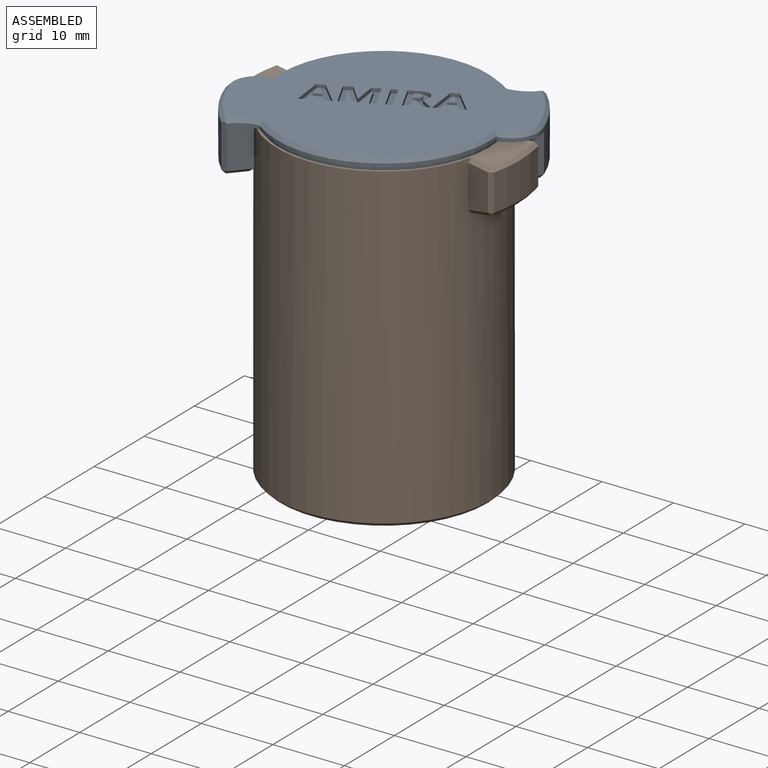
[diagram: assembled view]
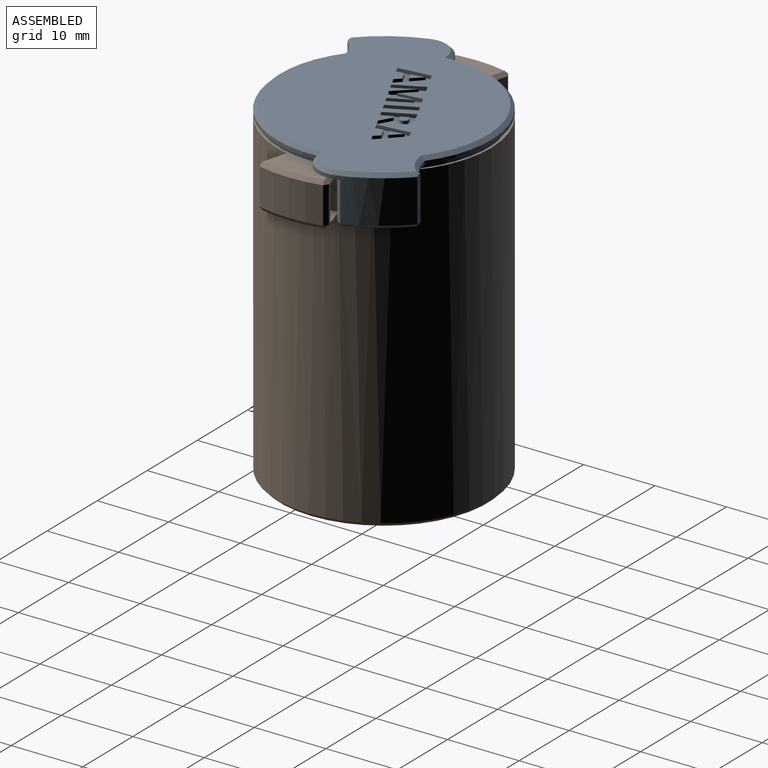
[diagram: assembled view, second angle]
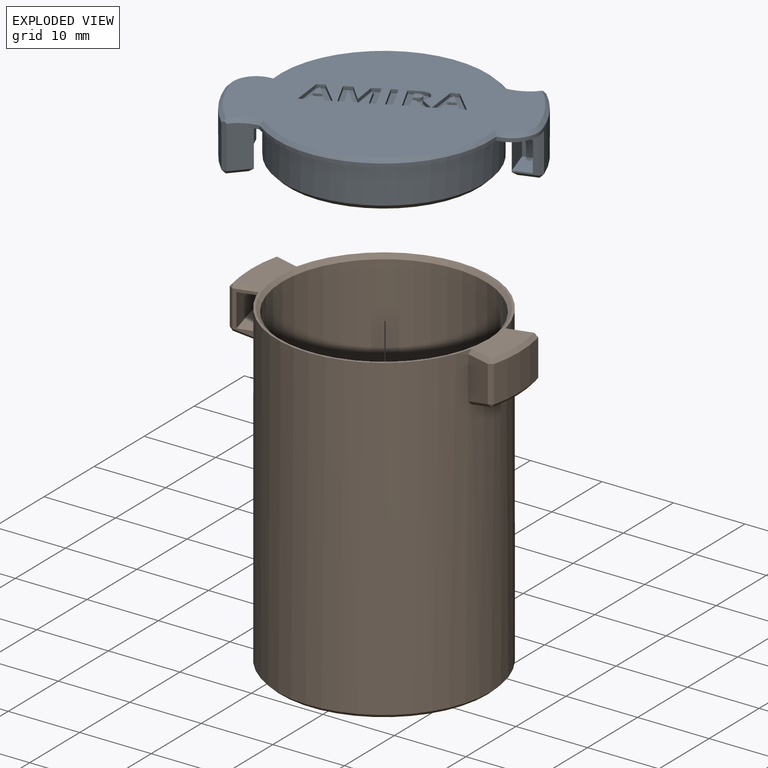
[diagram: exploded view]
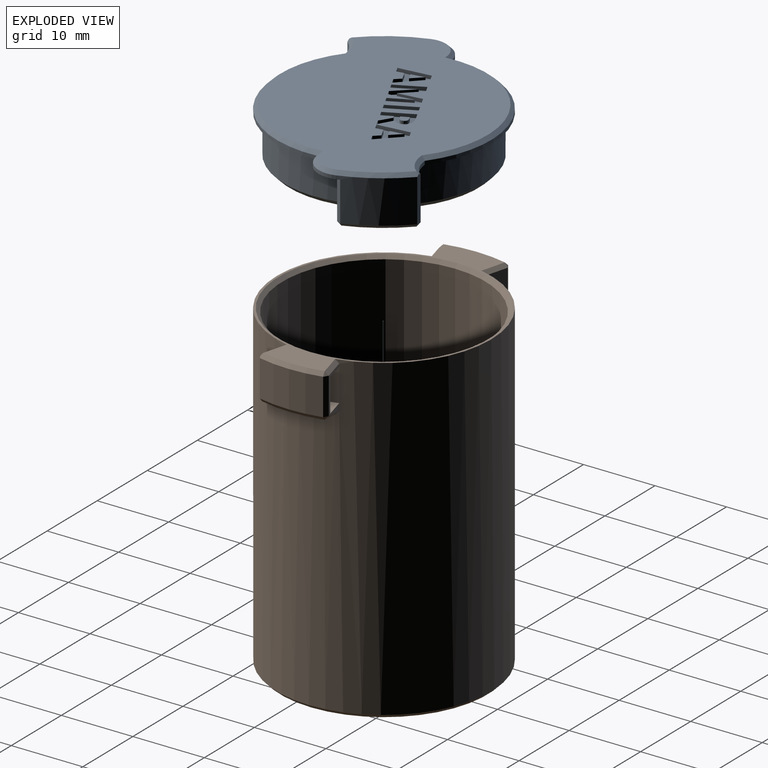
[diagram: exploded view, second angle]
ASSEMBLY  parts=2 mates=2
PART A: 134 faces, bbox 36.6x30x7 mm
  f0: plane 35.47x29mm, normal (0,0,1), area 707.3mm2, adj f34,f35,f36,f37,f38,f39,f40,f41
  f1: cylinder r=19mm len=8.02mm, axis (0,0,1), area 53.8mm2, adj f2,f28,f43,f44,f45,f46
  f2: plane 34.2x30mm, normal (0,0,-1), area 127.9mm2, adj f1,f3,f4,f5,f9,f11,f17,f18
  f3: plane 5.5x2.26mm, normal (-0.71,-0.71,0), area 7.1mm2, adj f2,f9,f12,f14,f15,f44,f49
  f4: cylinder r=19mm len=8.02mm, axis (0,0,1), area 53.8mm2, adj f2,f33,f34,f52,f53,f54
  f5: cylinder r=13.95mm len=27.9mm, axis (0,0,-1), area 464.5mm2, adj f2,f26
  f6: plane 26.5x26.5mm, normal (0,0,-1), area 40.8mm2, adj f7,f26
  f7: cylinder r=12.75mm len=25.5mm, axis (0,0,-1), area 400.6mm2, adj f6,f27
  f8: plane 23.5x23.5mm, normal (0,0,-1), area 433.7mm2, adj f27
  f9: cylinder r=15.3mm len=6.86mm, axis (0,0,1), area 44.1mm2, adj f2,f3,f11,f13,f51
  f10: plane 8.15x6.21mm, normal (0,0,-1), area 21.5mm2, adj f45,f49,f50,f51
  f11: plane 6x3.08mm, normal (0.26,0.97,0), area 18mm2, adj f2,f9,f31,f41,f46,f50
  f12: plane 4.6x4.6mm, normal (0,0,-1), area 10mm2, adj f3,f13,f15,f16
  f13: plane 4.2x2.83mm, normal (0.71,-0.71,0), area 16.8mm2, adj f9,f12,f14,f16
  f14: plane 4.6x4.6mm, normal (0,0,1), area 10mm2, adj f3,f13,f15,f16
  f15: plane 4.2x2.83mm, normal (-0.71,0.71,0), area 16.8mm2, adj f3,f12,f14,f16
  f16: plane 4.2x1.77mm, normal (-0.71,-0.71,0), area 10.5mm2, adj f12,f13,f14,f15
  f17: plane 5.5x2.26mm, normal (0.71,0.71,0), area 7.1mm2, adj f2,f18,f21,f23,f24,f52,f57
  f18: cylinder r=15.3mm len=6.86mm, axis (0,0,1), area 44.1mm2, adj f2,f17,f20,f22,f59
  f19: plane 8.15x6.21mm, normal (0,0,-1), area 21.5mm2, adj f53,f57,f58,f59
  f20: plane 6x3.08mm, normal (-0.26,-0.97,0), area 18mm2, adj f2,f18,f29,f36,f54,f58
  f21: plane 4.6x4.6mm, normal (0,0,-1), area 10mm2, adj f17,f22,f24,f25
  f22: plane 4.2x2.83mm, normal (-0.71,0.71,0), area 16.8mm2, adj f18,f21,f23,f25
  f23: plane 4.6x4.6mm, normal (0,0,1), area 10mm2, adj f17,f22,f24,f25
  f24: plane 4.2x2.83mm, normal (0.71,-0.71,0), area 16.8mm2, adj f17,f21,f23,f25
  f25: plane 4.2x1.77mm, normal (0.71,0.71,0), area 10.5mm2, adj f21,f22,f23,f24
  f26: cone r=13.25mm half-angle=45deg, axis (0,0,1), area 84.6mm2, adj f5,f6
  f27: torus R=11.75mm, axis (0,0,-1), area 122.3mm2, adj f7,f8
  f28: cylinder r=3.7mm len=5.71mm, axis (0,0,-1), area 3.3mm2, adj f1,f2,f30,f42
  f29: cylinder r=4.96mm len=2.33mm, axis (0,0,-1), area 1.6mm2, adj f2,f20,f30,f38
  f30: cylinder r=15mm len=22.73mm, axis (0,0,-1), area 17.1mm2, adj f2,f28,f29,f40
  f31: cylinder r=4.96mm len=2.33mm, axis (0,0,-1), area 1.6mm2, adj f2,f11,f32,f39
  f32: cylinder r=15mm len=22.73mm, axis (0,0,-1), area 17.1mm2, adj f2,f31,f33,f37
  f33: cylinder r=3.7mm len=5.71mm, axis (0,0,-1), area 3.3mm2, adj f2,f4,f32,f35
  f34: cone r=19mm half-angle=45deg, axis (0,0,-1), area 6.7mm2, adj f0,f4,f35,f36,f54
  f35: cone r=3.7mm half-angle=45deg, axis (0,0,-1), area 4.5mm2, adj f0,f33,f34,f37
  f36: plane 1.1x0.69mm, normal (-0.18,-0.68,0.71), area 0.7mm2, adj f0,f20,f34,f38,f54
  f37: cone r=15mm half-angle=45deg, axis (0,0,-1), area 24.1mm2, adj f0,f32,f35,f39
  f38: cone r=5.46mm half-angle=45deg, axis (0,0,1), area 2.4mm2, adj f0,f29,f36,f40
  f39: cone r=5.46mm half-angle=45deg, axis (0,0,1), area 2.4mm2, adj f0,f31,f37,f41
  f40: cone r=15mm half-angle=45deg, axis (0,0,-1), area 24.1mm2, adj f0,f30,f38,f42
  f41: plane 1.1x0.69mm, normal (0.18,0.68,0.71), area 0.7mm2, adj f0,f11,f39,f43,f46
  f42: cone r=3.7mm half-angle=45deg, axis (0,0,-1), area 4.5mm2, adj f0,f28,f40,f43
  f43: cone r=19mm half-angle=45deg, axis (0,0,-1), area 6.7mm2, adj f0,f1,f41,f42,f46
  f44: plane 5.5x0.72mm, normal (0.01,-1,0), area 3.9mm2, adj f1,f2,f3,f47
  f45: cone r=19mm half-angle=45deg, axis (0,0,1), area 6.2mm2, adj f1,f10,f47,f48
  f46: plane 6.26x0.63mm, normal (0.87,0.49,0), area 4.4mm2, adj f1,f11,f41,f43,f48
  f47: plane 0.72x0.5mm, normal (0.01,-0.82,-0.57), area 0.2mm2, adj f44,f45,f49
  f48: plane 0.63x0.5mm, normal (0.72,0.4,-0.57), area 0.2mm2, adj f45,f46,f50
  f49: plane 2.62x2.27mm, normal (-0.5,-0.5,-0.71), area 2.1mm2, adj f3,f10,f47,f51
  f50: plane 3.09x1.32mm, normal (0.18,0.68,-0.71), area 2.1mm2, adj f10,f11,f48,f51
  f51: cone r=15.8mm half-angle=45deg, axis (0,0,-1), area 5.4mm2, adj f9,f10,f49,f50
  f52: plane 5.5x0.72mm, normal (-0.01,1,0), area 3.9mm2, adj f2,f4,f17,f55
  f53: cone r=19mm half-angle=45deg, axis (0,0,1), area 6.2mm2, adj f4,f19,f55,f56
  f54: plane 6.26x0.63mm, normal (-0.87,-0.49,0), area 4.4mm2, adj f4,f20,f34,f36,f56
  f55: plane 0.72x0.5mm, normal (-0.01,0.82,-0.57), area 0.2mm2, adj f52,f53,f57
  f56: plane 0.63x0.5mm, normal (-0.72,-0.4,-0.57), area 0.2mm2, adj f53,f54,f58
  f57: plane 2.62x2.27mm, normal (0.5,0.5,-0.71), area 2.1mm2, adj f17,f19,f55,f59
  f58: plane 3.09x1.32mm, normal (-0.18,-0.68,-0.71), area 2.1mm2, adj f19,f20,f56,f59
  f59: cone r=15.8mm half-angle=45deg, axis (0,0,-1), area 5.4mm2, adj f18,f19,f57,f58
  f60: plane 3.24x1.18mm, normal (0.94,-0.34,0), area 1.7mm2, adj f0,f61,f78,f79
  f61: plane 0.65x0.5mm, normal (0.6,0.8,0), area 0.4mm2, adj f0,f60,f62,f79
  f62: plane 2.84x1.97mm, normal (-0.57,0.82,0), area 1.7mm2, adj f0,f61,f63,f79
  f63: plane 0.5x0.02mm, normal (0.6,0.8,0), area 0mm2, adj f0,f62,f64,f79
  f64: extruded ~0.76x0.62mm, area 0.5mm2, adj f0,f63,f65,f79
  f65: extruded ~0.5x0.26mm, area 0.2mm2, adj f0,f64,f66,f79
  f66: plane 1.59x1.2mm, normal (0.8,-0.6,0), area 1mm2, adj f0,f65,f67,f79
  f67: plane 0.66x0.5mm, normal (0.6,0.8,0), area 0.4mm2, adj f0,f66,f68,f79
  f68: plane 3.35x2.53mm, normal (-0.8,0.6,0), area 2.1mm2, adj f0,f67,f69,f79
  f69: plane 0.97x0.73mm, normal (-0.6,-0.8,0), area 0.6mm2, adj f0,f68,f70,f79
  f70: plane 2.77x1.93mm, normal (0.57,-0.82,0), area 1.7mm2, adj f0,f69,f71,f79
  f71: plane 0.5x0.01mm, normal (-0.6,-0.8,0), area 0mm2, adj f0,f70,f72,f79
  f72: plane 3.16x1.14mm, normal (-0.94,0.34,0), area 1.7mm2, adj f0,f71,f73,f79
  f73: plane 0.97x0.73mm, normal (-0.6,-0.8,0), area 0.6mm2, adj f0,f72,f74,f79
  f74: plane 3.35x2.53mm, normal (0.8,-0.6,0), area 2.1mm2, adj f0,f73,f75,f79
  f75: plane 0.64x0.5mm, normal (0.6,0.8,0), area 0.4mm2, adj f0,f74,f76,f79
  f76: plane 1.56x1.18mm, normal (-0.8,0.6,0), area 1mm2, adj f0,f75,f77,f79
  f77: extruded ~1.1x0.76mm, area 0.7mm2, adj f0,f76,f78,f79
  f78: plane 0.5x0.02mm, normal (0.6,0.8,0), area 0mm2, adj f0,f60,f77,f79
  f79: plane 6.11x6.06mm, normal (0,0,1), area 12.2mm2, adj f60,f61,f62,f63,f64,f65,f66,f67
  f80: plane 1.29x0.97mm, normal (-0.8,0.6,0), area 0.8mm2, adj f0,f81,f98,f99
  f81: plane 0.5x0.38mm, normal (0.6,0.8,0), area 0.2mm2, adj f0,f80,f82,f99
  f82: plane 1.89x0.5mm, normal (1,-0.09,0), area 0.9mm2, adj f0,f81,f83,f99
  f83: plane 0.79x0.59mm, normal (0.6,0.8,0), area 0.5mm2, adj f0,f82,f84,f99
  f84: extruded ~2.2x0.5mm, area 1.1mm2, adj f0,f83,f85,f99
  f85: extruded ~0.73x0.5mm, area 0.4mm2, adj f0,f84,f86,f99
  f86: extruded ~0.56x0.5mm, area 0.4mm2, adj f0,f85,f87,f99
  f87: extruded ~1x0.5mm, area 0.5mm2, adj f0,f86,f88,f99
  f88: extruded ~1.01x0.82mm, area 0.7mm2, adj f0,f87,f89,f99
  f89: plane 0.98x0.74mm, normal (-0.6,-0.8,0), area 0.6mm2, adj f0,f88,f90,f99
  f90: plane 3.35x2.53mm, normal (0.8,-0.6,0), area 2.1mm2, adj f0,f89,f98,f99
  f91: plane 0.5x0.23mm, normal (-0.6,-0.8,0), area 0.1mm2, adj f92,f97,f99,f100
  f92: plane 0.91x0.68mm, normal (-0.8,0.6,0), area 0.6mm2, adj f91,f93,f99,f100
  f93: plane 0.5x0.22mm, normal (0.6,0.8,0), area 0.1mm2, adj f92,f94,f99,f100
  f94: extruded ~0.5x0.48mm, area 0.3mm2, adj f93,f95,f99,f100
  f95: extruded ~0.5x0.46mm, area 0.2mm2, adj f94,f96,f99,f100
  f96: extruded ~0.5x0.43mm, area 0.3mm2, adj f95,f97,f99,f100
  f97: extruded ~0.58x0.5mm, area 0.3mm2, adj f91,f96,f99,f100
  f98: plane 0.71x0.54mm, normal (0.6,0.8,0), area 0.4mm2, adj f0,f80,f90,f99
  f99: plane 5.37x4.42mm, normal (0,0,1), area 8.6mm2, adj f80,f81,f82,f83,f84,f85,f86,f87
  f100: plane 1.38x1.35mm, normal (0,0,1), area 1.1mm2, adj f91,f92,f93,f94,f95,f96,f97
  f101: extruded ~1.51x0.55mm, area 0.8mm2, adj f102,f112,f113,f132
  f102: plane 0.87x0.66mm, normal (-0.6,-0.8,0), area 0.5mm2, adj f101,f103,f113,f132
  f103: extruded ~1.53x1.13mm, area 0.9mm2, adj f102,f112,f113,f132
  f104: plane 0.98x0.5mm, normal (0.94,-0.34,0), area 0.5mm2, adj f0,f105,f111,f113
  f105: plane 0.77x0.58mm, normal (0.6,0.8,0), area 0.5mm2, adj f0,f104,f106,f113
  f106: plane 4.26x1.35mm, normal (-0.95,0.3,0), area 2.2mm2, adj f0,f105,f107,f113
  f107: plane 0.87x0.66mm, normal (-0.6,-0.8,0), area 0.5mm2, adj f0,f106,f108,f113
  f108: plane 3.72x2.48mm, normal (0.55,-0.83,0), area 2.2mm2, adj f0,f107,f109,f113
  f109: plane 0.77x0.58mm, normal (0.6,0.8,0), area 0.5mm2, adj f0,f108,f110,f113
  f110: plane 0.84x0.62mm, normal (-0.59,0.81,0), area 0.5mm2, adj f0,f109,f111,f113
  f111: plane 1.22x0.92mm, normal (0.6,0.8,0), area 0.8mm2, adj f0,f104,f110,f113
  f112: extruded ~0.5x0.27mm, area 0.1mm2, adj f101,f103,f113,f132
  f113: plane 4.92x4.59mm, normal (0,0,1), area 8mm2, adj f101,f102,f103,f104,f105,f106,f107,f108
  f114: extruded ~1.51x0.55mm, area 0.8mm2, adj f115,f125,f126,f133
  f115: plane 0.87x0.66mm, normal (-0.6,-0.8,0), area 0.5mm2, adj f114,f116,f126,f133
  f116: extruded ~1.53x1.13mm, area 0.9mm2, adj f115,f125,f126,f133
  f117: plane 0.98x0.5mm, normal (0.94,-0.34,0), area 0.5mm2, adj f0,f118,f124,f126
  f118: plane 0.77x0.58mm, normal (0.6,0.8,0), area 0.5mm2, adj f0,f117,f119,f126
  f119: plane 4.26x1.35mm, normal (-0.95,0.3,0), area 2.2mm2, adj f0,f118,f120,f126
  f120: plane 0.87x0.66mm, normal (-0.6,-0.8,0), area 0.5mm2, adj f0,f119,f121,f126
  f121: plane 3.72x2.48mm, normal (0.55,-0.83,0), area 2.2mm2, adj f0,f120,f122,f126
  f122: plane 0.77x0.58mm, normal (0.6,0.8,0), area 0.5mm2, adj f0,f121,f123,f126
  f123: plane 0.84x0.62mm, normal (-0.59,0.81,0), area 0.5mm2, adj f0,f122,f124,f126
  f124: plane 1.22x0.92mm, normal (0.6,0.8,0), area 0.8mm2, adj f0,f117,f123,f126
  f125: extruded ~0.5x0.27mm, area 0.1mm2, adj f114,f116,f126,f133
  f126: plane 4.92x4.59mm, normal (0,0,1), area 8mm2, adj f114,f115,f116,f117,f118,f119,f120,f121
  f127: plane 3.35x2.53mm, normal (0.8,-0.6,0), area 2.1mm2, adj f0,f128,f130,f131
  f128: plane 0.71x0.54mm, normal (0.6,0.8,0), area 0.4mm2, adj f0,f127,f129,f131
  f129: plane 3.35x2.53mm, normal (-0.8,0.6,0), area 2.1mm2, adj f0,f128,f130,f131
  f130: plane 0.71x0.54mm, normal (-0.6,-0.8,0), area 0.4mm2, adj f0,f127,f129,f131
  f131: plane 3.89x3.24mm, normal (0,0,1), area 3.7mm2, adj f127,f128,f129,f130
  f132: plane 1.78x1.53mm, normal (0,0,1), area 1mm2, adj f101,f102,f103,f112
  f133: plane 1.78x1.53mm, normal (0,0,1), area 1mm2, adj f114,f115,f116,f125
PART B: 50 faces, bbox 38x30x45 mm
  f0: plane 5.98x3.38mm, normal (0.26,-0.97,0), area 5.6mm2, adj f5,f9,f10,f18,f19,f20,f22
  f1: plane 37x30mm, normal (0,0,1), area 82.4mm2, adj f5,f7,f8,f22,f27,f29,f30,f48
  f2: cone r=19mm half-angle=76deg, axis (0,0,1), area 29.1mm2, adj f10,f14,f16,f22
  f3: cylinder r=19mm len=8.84mm, axis (0,0,1), area 45.6mm2, adj f8,f9,f13,f14
  f4: plane 5.98x3.38mm, normal (0.26,0.97,0), area 19.4mm2, adj f7,f13,f16,f22
  f5: plane 3.51x1.39mm, normal (0.18,-0.68,0.71), area 2.5mm2, adj f0,f1,f6,f22
  f6: plane 0.62x0.5mm, normal (-0.42,-0.7,0.57), area 0.2mm2, adj f5,f8,f9
  f7: plane 3.51x1.39mm, normal (0.18,0.68,0.71), area 2.5mm2, adj f1,f4,f11,f22
  f8: cone r=18.5mm half-angle=45deg, axis (0,0,-1), area 6.2mm2, adj f1,f3,f6,f11
  f9: plane 5.11x0.62mm, normal (-0.51,-0.86,0), area 3.7mm2, adj f0,f3,f6,f12
  f10: bspline ~4.1x1.49mm, area 2.6mm2, adj f0,f2,f12,f22
  f11: plane 0.62x0.5mm, normal (-0.42,0.7,0.57), area 0.2mm2, adj f7,f8,f13
  f12: plane 0.62x0.49mm, normal (-0.45,-0.75,-0.48), area 0.2mm2, adj f9,f10,f14
  f13: plane 5.11x0.62mm, normal (-0.51,0.86,0), area 3.7mm2, adj f3,f4,f11,f15
  f14: cone r=19mm half-angle=38deg, axis (0,0,1), area 5.4mm2, adj f2,f3,f12,f15
  f15: plane 0.62x0.49mm, normal (-0.45,0.75,-0.48), area 0.2mm2, adj f13,f14,f16
  f16: bspline ~4.1x1.49mm, area 2.6mm2, adj f2,f4,f15,f22
  f17: plane 5.8x4.6mm, normal (-0.97,-0.26,0), area 27.6mm2, adj f18,f20,f21,f22
  f18: plane 6.57x4.45mm, normal (0,0,-1), area 18mm2, adj f0,f17,f19,f21
  f19: plane 5.8x4.6mm, normal (0.97,0.26,0), area 27.6mm2, adj f0,f18,f20,f21
  f20: plane 6.57x4.45mm, normal (0,0,1), area 18mm2, adj f0,f17,f19,f21
  f21: plane 4.6x2.9mm, normal (0.26,-0.97,0), area 13.8mm2, adj f17,f18,f19,f20
  f22: cylinder r=15mm len=44.5mm, axis (0,0,-1), area 4085.1mm2, adj f0,f1,f2,f4,f5,f7,f10,f16
  f23: plane 5.98x3.38mm, normal (-0.26,0.97,0), area 5.6mm2, adj f22,f27,f31,f32,f40,f41,f42
  f24: cone r=19mm half-angle=76deg, axis (0,0,1), area 29.1mm2, adj f22,f32,f36,f38
  f25: cylinder r=19mm len=8.84mm, axis (0,0,1), area 45.6mm2, adj f30,f31,f35,f36
  f26: plane 5.98x3.38mm, normal (-0.26,-0.97,0), area 19.4mm2, adj f22,f29,f35,f38
  f27: plane 3.51x1.39mm, normal (-0.18,0.68,0.71), area 2.5mm2, adj f1,f22,f23,f28
  f28: plane 0.62x0.5mm, normal (0.42,0.7,0.57), area 0.2mm2, adj f27,f30,f31
  f29: plane 3.51x1.39mm, normal (-0.18,-0.68,0.71), area 2.5mm2, adj f1,f22,f26,f33
  f30: cone r=18.5mm half-angle=45deg, axis (0,0,-1), area 6.2mm2, adj f1,f25,f28,f33
  f31: plane 5.11x0.62mm, normal (0.51,0.86,0), area 3.7mm2, adj f23,f25,f28,f34
  f32: bspline ~4.1x1.49mm, area 2.6mm2, adj f22,f23,f24,f34
  f33: plane 0.62x0.5mm, normal (0.42,-0.7,0.57), area 0.2mm2, adj f29,f30,f35
  f34: plane 0.62x0.49mm, normal (0.45,0.75,-0.48), area 0.2mm2, adj f31,f32,f36
  f35: plane 5.11x0.62mm, normal (0.51,-0.86,0), area 3.7mm2, adj f25,f26,f33,f37
  f36: cone r=19mm half-angle=38deg, axis (0,0,1), area 5.4mm2, adj f24,f25,f34,f37
  f37: plane 0.62x0.49mm, normal (0.45,-0.75,-0.48), area 0.2mm2, adj f35,f36,f38
  f38: bspline ~4.1x1.49mm, area 2.6mm2, adj f22,f24,f26,f37
  f39: plane 5.8x4.6mm, normal (0.97,0.26,0), area 27.6mm2, adj f22,f40,f42,f43
  f40: plane 6.57x4.45mm, normal (0,0,-1), area 18mm2, adj f23,f39,f41,f43
  f41: plane 5.8x4.6mm, normal (-0.97,-0.26,0), area 27.6mm2, adj f23,f40,f42,f43
  f42: plane 6.57x4.45mm, normal (0,0,1), area 18mm2, adj f23,f39,f41,f43
  f43: plane 4.6x2.9mm, normal (-0.26,0.97,0), area 13.8mm2, adj f39,f40,f41,f42
  f44: plane 29x29mm, normal (0,0,-1), area 660.5mm2, adj f47
  f45: cylinder r=14.2mm len=33.7mm, axis (0,0,1), area 3006.8mm2, adj f48,f49
  f46: plane 8.4x8.4mm, normal (0,0,1), area 55.4mm2, adj f49
  f47: cone r=15mm half-angle=45deg, axis (0,0,1), area 65.5mm2, adj f22,f44
  f48: cone r=14.2mm half-angle=45deg, axis (0,0,1), area 64.2mm2, adj f1,f45
  f49: torus R=4.2mm, axis (0,0,1), area 1042.8mm2, adj f45,f46
PLACE A rot(axis=(0,0,1),63.1deg) t=(19.1,23.49,-2.75)mm
PLACE B t=(19.1,23.49,-35.25)mm fixed
MATE revolute A.f1 <-> B.f45  axis (0,0,1) through (19.1,23.49,10.75)mm
MATE cylindrical A.f26 <-> B.f45  axis (0,0,-1) through (19.1,23.49,10.25)mm
